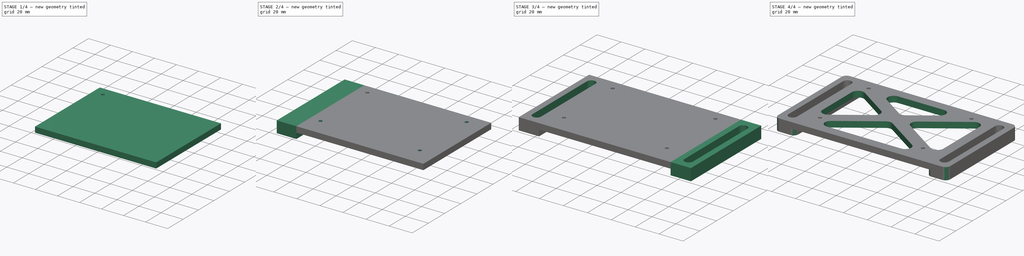
[diagram: build sequence overview — one tinted view per stage of 4, left to right]
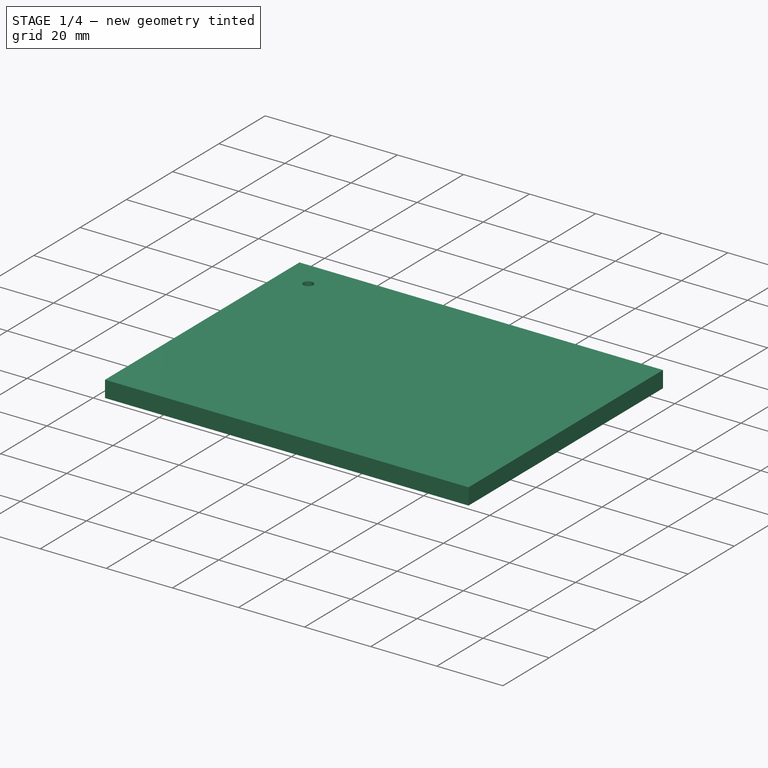
[diagram: stage 1 of 4 — iso view after this stage's code; geometry added in this stage tinted green]
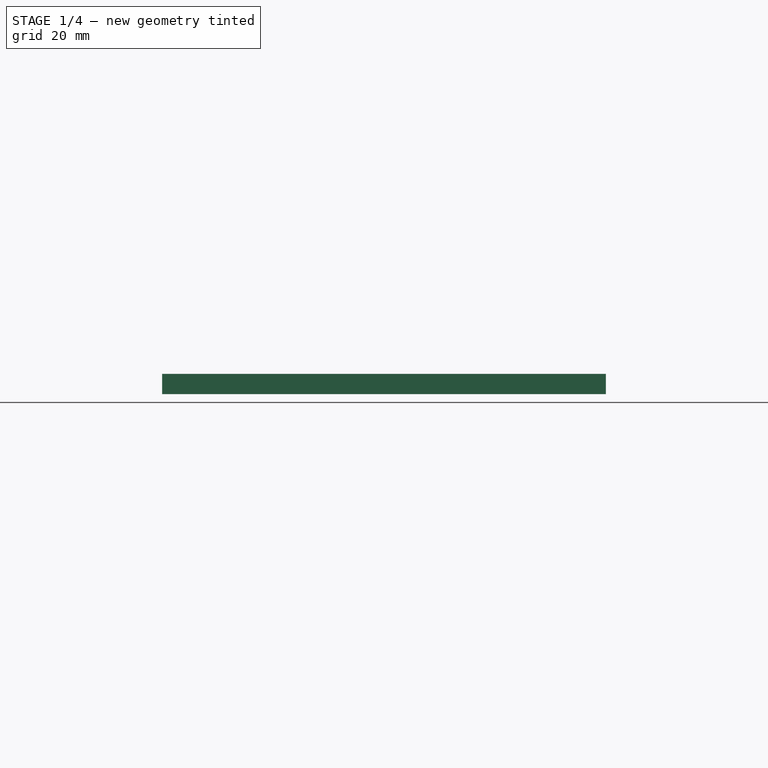
[diagram: stage 1 of 4 — front view after this stage's code; geometry added in this stage tinted green]
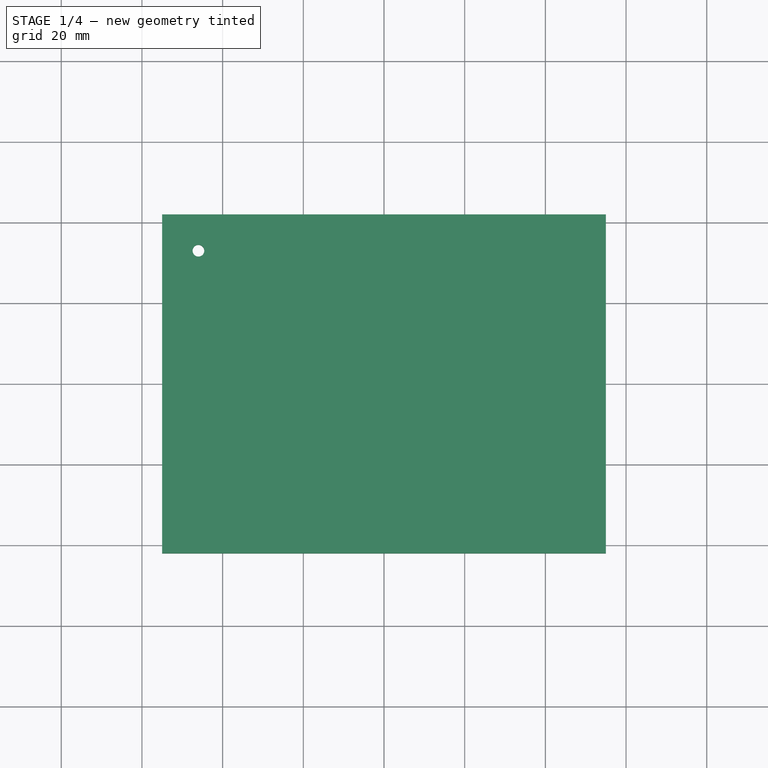
[diagram: stage 1 of 4 — top view after this stage's code; geometry added in this stage tinted green]
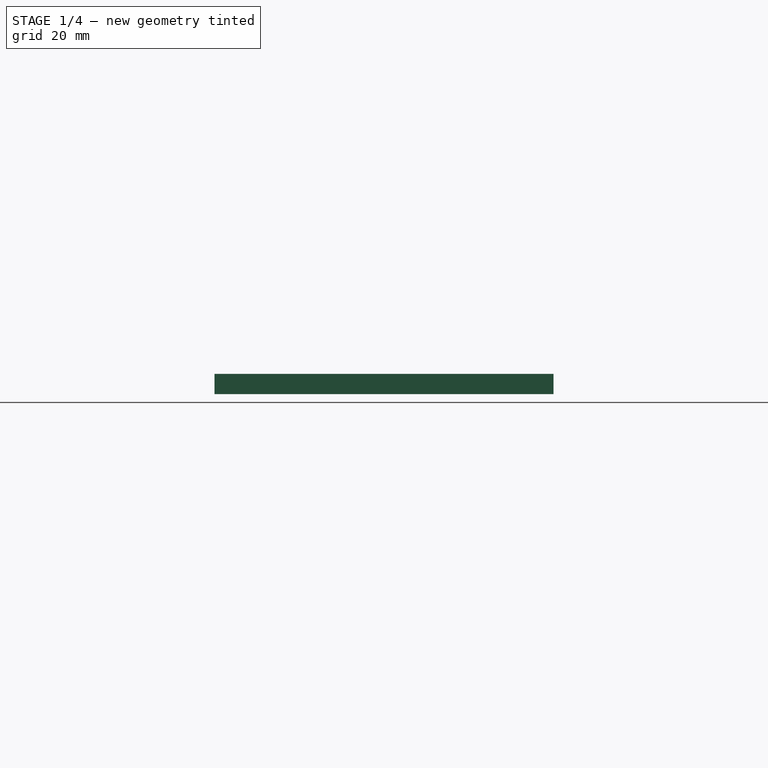
[diagram: stage 1 of 4 — right view after this stage's code; geometry added in this stage tinted green]
FCSTD DOCUMENT  (FreeCAD 0.19R)
Label: Jetson_mount
License: All rights reserved
LicenseURL: http://en.wikipedia.org/wiki/All_rights_reserved
objects: Sketcher::SketchObject×5, PartDesign::Pad×3, PartDesign::Pocket×3, PartDesign::LinearPattern×2, PartDesign::Fillet×2, PartDesign::Hole×1, PartDesign::MultiTransform×1, PartDesign::Mirrored×1, PartDesign::Body×1
note: 28 computed .brp shape members not serialized (recipe doc carries the construction recipe); baked Part::Feature solids carry a one-line shape summary decoded from their .brp

FEATURE [Sketcher::SketchObject] Sketch  label="floor_sketch"
  FullyConstrained = true
  MapMode = 5
  Support = -> [XY_Plane]
  sketch-geometry (4):
    g0: LineSegment StartX=-55 StartY=-42 StartZ=0 EndX=55 EndY=-42 EndZ=0
    g1: LineSegment StartX=55 StartY=-42 StartZ=0 EndX=55 EndY=42 EndZ=0
    g2: LineSegment StartX=55 StartY=42 StartZ=0 EndX=-55 EndY=42 EndZ=0
    g3: LineSegment StartX=-55 StartY=42 StartZ=0 EndX=-55 EndY=-42 EndZ=0
  constraints (11):
    c: Coincident(g0,g1)
    c: Coincident(g1,g2)
    c: Coincident(g2,g3)
    c: Coincident(g3,g0)
    c: Horizontal(g0)
    c: Horizontal(g2)
    c: Vertical(g1)
    c: Vertical(g3)
    c: Symmetric(g1,g0,g-1)
    c: DistanceX(g2,g2) = 110
    c: DistanceY(g3,g3) = 84
FEATURE [PartDesign::Pad] Pad  label="floor"
  Direction = (1,1,1)
  Length = 5
  Length2 = 100
  Profile = -> Sketch
  Type = 0
FEATURE [Sketcher::SketchObject] Sketch001  label="jetson_mount_holes_sketch"
  ExternalGeometry = -> [Pad]
  FullyConstrained = true
  MapMode = 5
  Placement = pos=(0,0,5) rot=(0,0,1;0rad)
  Support = -> [Pad]
  sketch-geometry (2):
    g0: GeomPoint X=-46 Y=33 Z=0
    g1: Circle CenterX=-46 CenterY=33 CenterZ=0 NormalX=0 NormalY=0 NormalZ=1 AngleXU=0 Radius=1.375
  constraints (4):
    c: DistanceX(g-3,g0) = 9
    c: DistanceY(g0,g-3) = 9
    c: Coincident(g1,g0)
    c: Radius(g1) = 1.375
FEATURE [PartDesign::Hole] Hole  label="jetson_mount_holes"
  BaseFeature = -> Pad
  Depth = 25
  DepthType = 1
  Diameter = 2.9
  DrillForDepth = false
  DrillPoint = 1
  DrillPointAngle = 118
  HoleCutCountersinkAngle = 90
  HoleCutCustomValues = false
  HoleCutDepth = 0
  HoleCutDiameter = 6.1
  HoleCutType = 0
  ModelActualThread = false
  Profile = -> Sketch001
  Tapered = false
  TaperedAngle = 90
  ThreadAngle = 0
  ThreadClass = 0
  ThreadCutOffInner = 0
  ThreadCutOffOuter = 0
  ThreadDirection = 0
  ThreadFit = 0
  ThreadPitch = 0
  ThreadSize = 8
  ThreadType = 1
  Threaded = false
FEATURE [Sketcher::SketchObject] Sketch002  label="M2-5_hex_sk"
  ExternalGeometry = -> [Hole]
  FullyConstrained = true
  MapMode = 5
  Placement = pos=(0,0,0) rot=(1,0,0;3.14159rad)
  Support = -> [Hole]
  sketch-geometry (7):
    g0: LineSegment StartX=-46 StartY=-36.0311 StartZ=0 EndX=-43.375 EndY=-34.5155 EndZ=0
    g1: LineSegment StartX=-43.375 StartY=-34.5155 StartZ=0 EndX=-43.375 EndY=-31.4845 EndZ=0
    g2: LineSegment StartX=-43.375 StartY=-31.4845 StartZ=0 EndX=-46 EndY=-29.9689 EndZ=0
    g3: LineSegment StartX=-46 StartY=-29.9689 StartZ=0 EndX=-48.625 EndY=-31.4845 EndZ=0
    g4: LineSegment StartX=-48.625 StartY=-31.4845 StartZ=0 EndX=-48.625 EndY=-34.5155 EndZ=0
    g5: LineSegment StartX=-48.625 StartY=-34.5155 StartZ=0 EndX=-46 EndY=-36.0311 EndZ=0
    g6: Circle CenterX=-46 CenterY=-33 CenterZ=0 NormalX=0 NormalY=0 NormalZ=1 AngleXU=0 Radius=3.03109
  constraints (16):
    c: Coincident(g0,g1)
    c: Coincident(g1,g2)
    c: Coincident(g2,g3)
    c: Coincident(g3,g4)
    c: Coincident(g4,g5)
    c: Coincident(g5,g0)
    c: Equal(g0, g1-g5) x5
    c: PointOnObject(g0,g6)
    c: PointOnObject(g1,g6)
    c: PointOnObject(g2,g6)
    c: PointOnObject(g3,g6)
    c: PointOnObject(g4,g6)
    c: PointOnObject(g5,g6)
    c: Coincident(g6,g-3)
    c: Vertical(g0,g6)
    c: Distance(g3,g1) = 5.25
FEATURE [PartDesign::Pocket] Pocket  label="M2-5_hex"
  BaseFeature = -> Hole
  Length = 1.75
  Length2 = 100
  Profile = -> Sketch002
  Type = 0
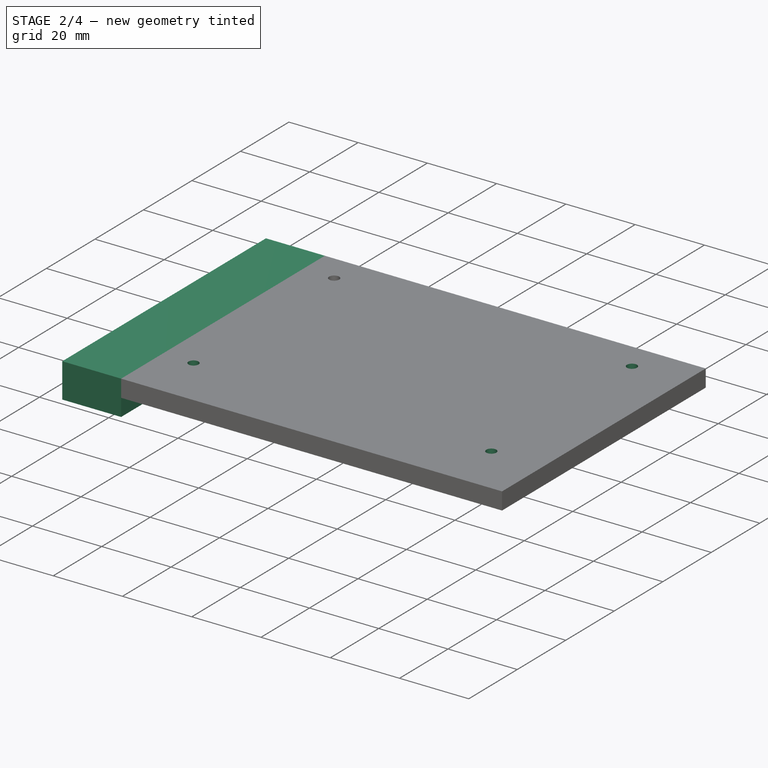
[diagram: stage 2 of 4 — iso view after this stage's code; geometry added in this stage tinted green]
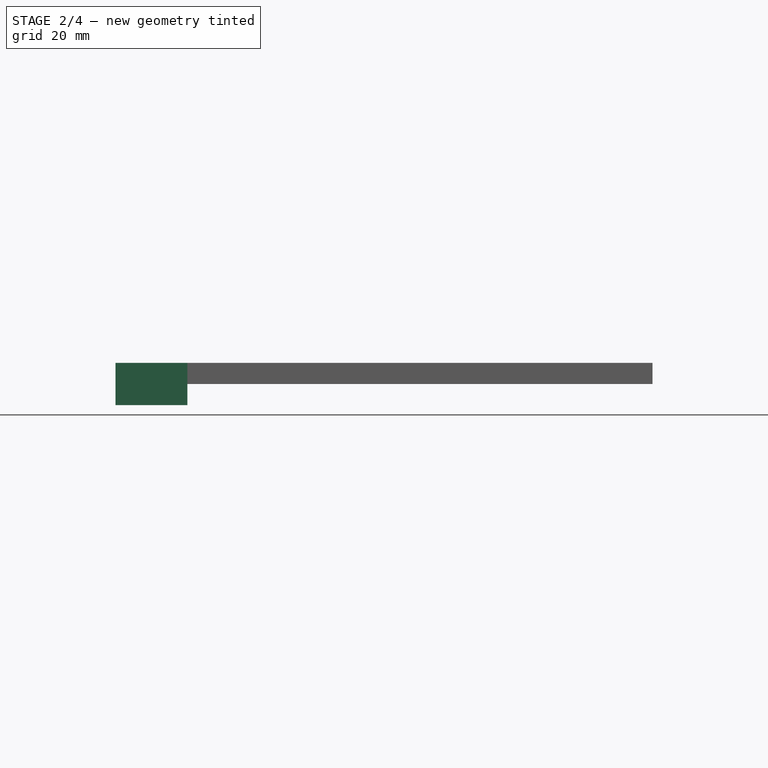
[diagram: stage 2 of 4 — front view after this stage's code; geometry added in this stage tinted green]
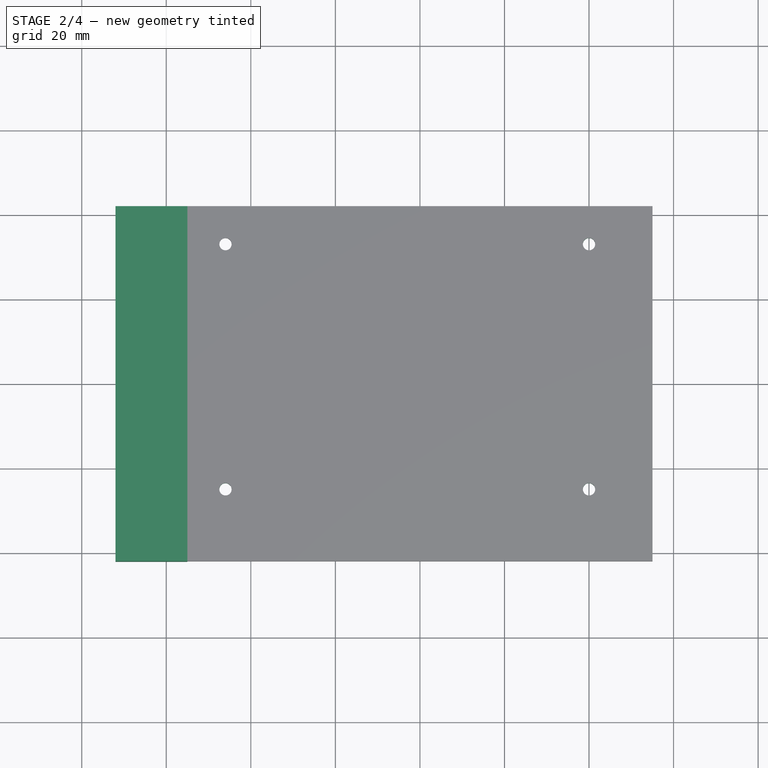
[diagram: stage 2 of 4 — top view after this stage's code; geometry added in this stage tinted green]
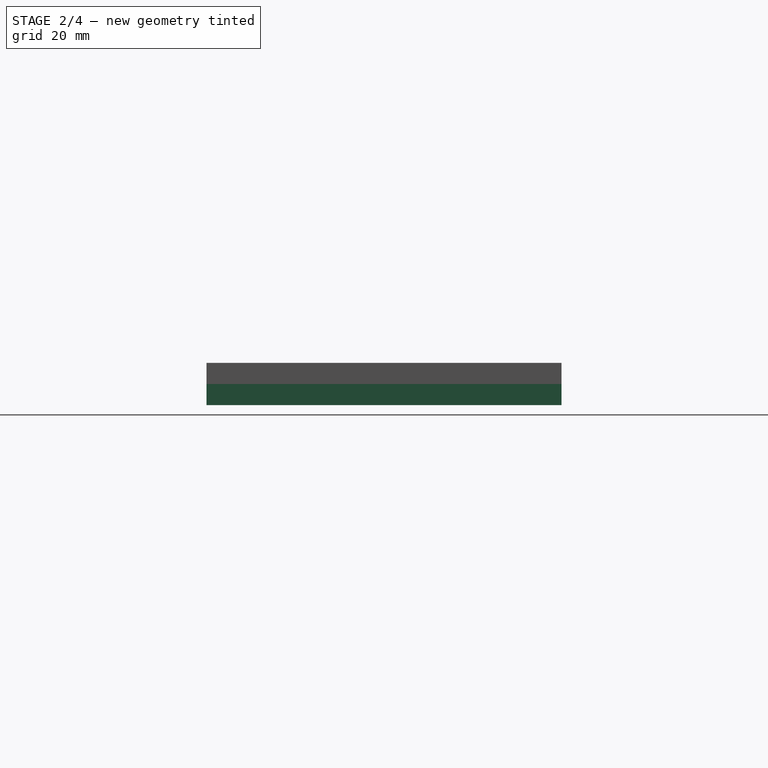
[diagram: stage 2 of 4 — right view after this stage's code; geometry added in this stage tinted green]
FEATURE [PartDesign::LinearPattern] LinearPattern
  Direction = -> X_Axis
  Length = 86
  Occurrences = 2
FEATURE [PartDesign::LinearPattern] LinearPattern001
  Direction = -> Y_Axis
  Length = 58
  Occurrences = 2
  Reversed = true
FEATURE [PartDesign::MultiTransform] MultiTransform  label="quad_M2-5_sys"
  BaseFeature = -> Pocket
  Originals = -> [Hole,Pocket]
  Transformations = -> [LinearPattern,LinearPattern001]
FEATURE [PartDesign::Pad] Pad001  label="side_slot_extender"
  BaseFeature = -> MultiTransform
  Direction = (1,1,1)
  Length = 17
  Length2 = 100
  Profile = -> MultiTransform [Face2]
  Type = 0
FEATURE [PartDesign::Pad] Pad002  label="side_slot_lift"
  BaseFeature = -> Pad001
  Direction = (1,1,1)
  Length = 5
  Length2 = 100
  Profile = -> Pad001 [Face6]
  Type = 0
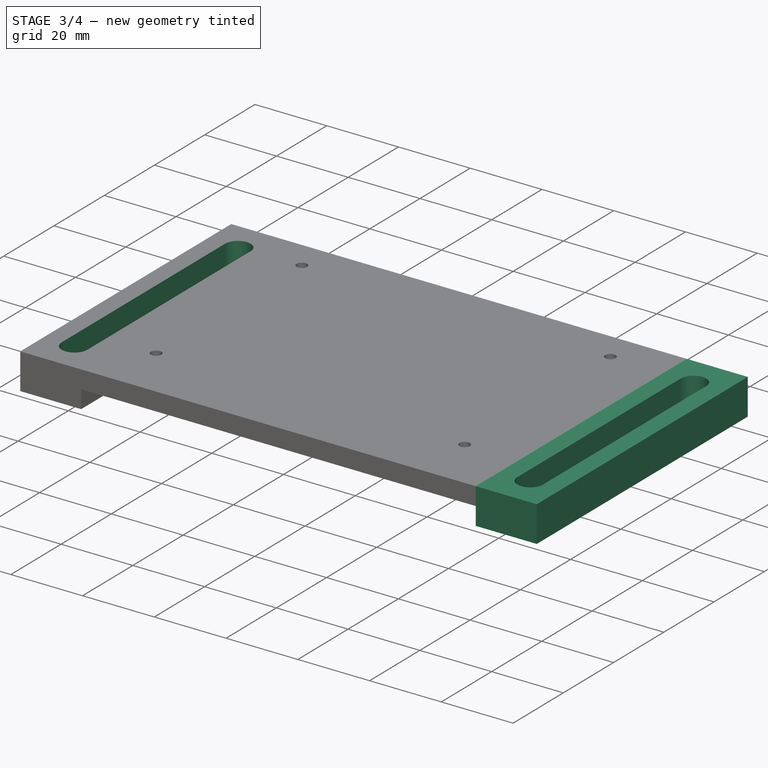
[diagram: stage 3 of 4 — iso view after this stage's code; geometry added in this stage tinted green]
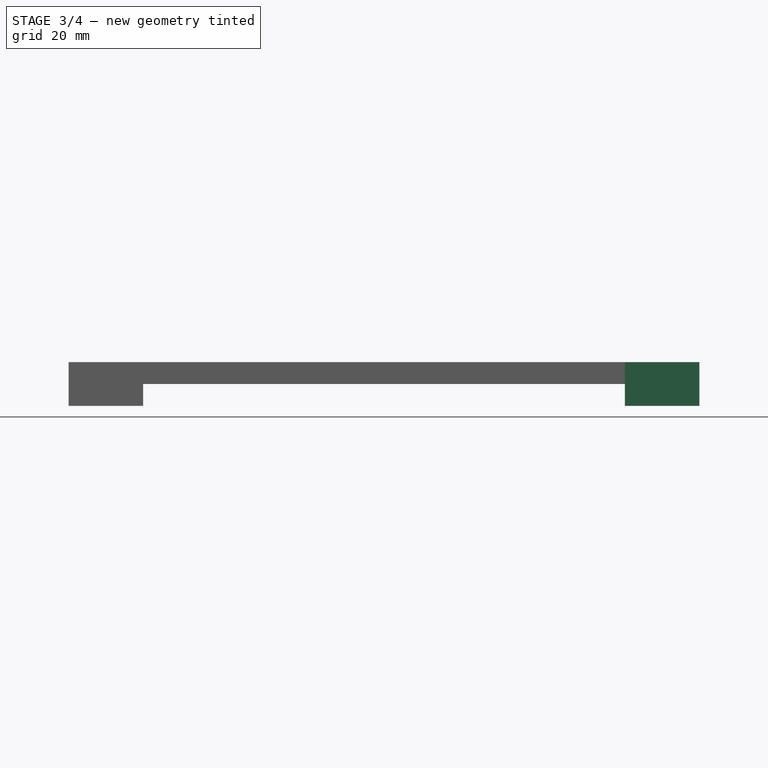
[diagram: stage 3 of 4 — front view after this stage's code; geometry added in this stage tinted green]
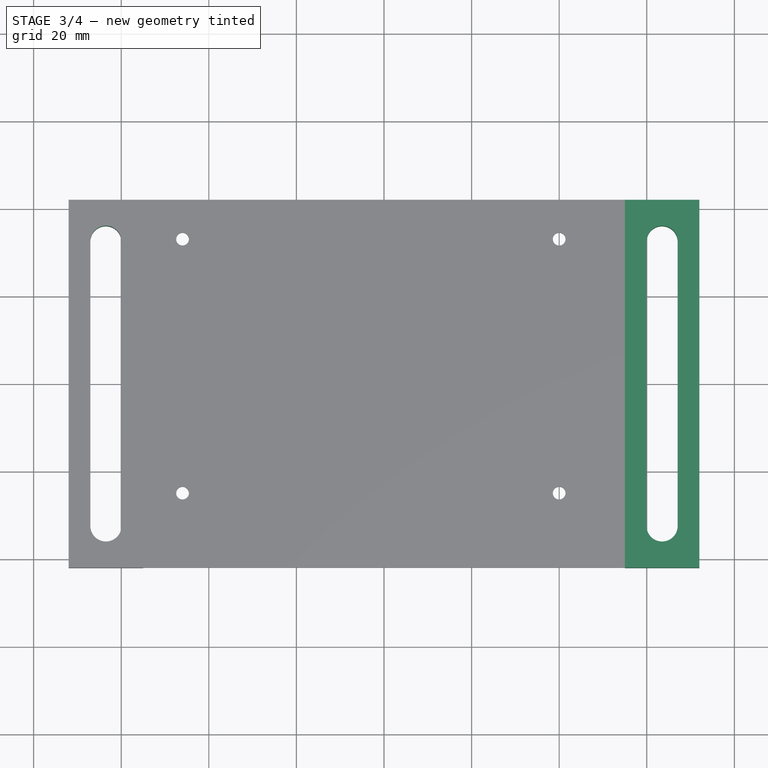
[diagram: stage 3 of 4 — top view after this stage's code; geometry added in this stage tinted green]
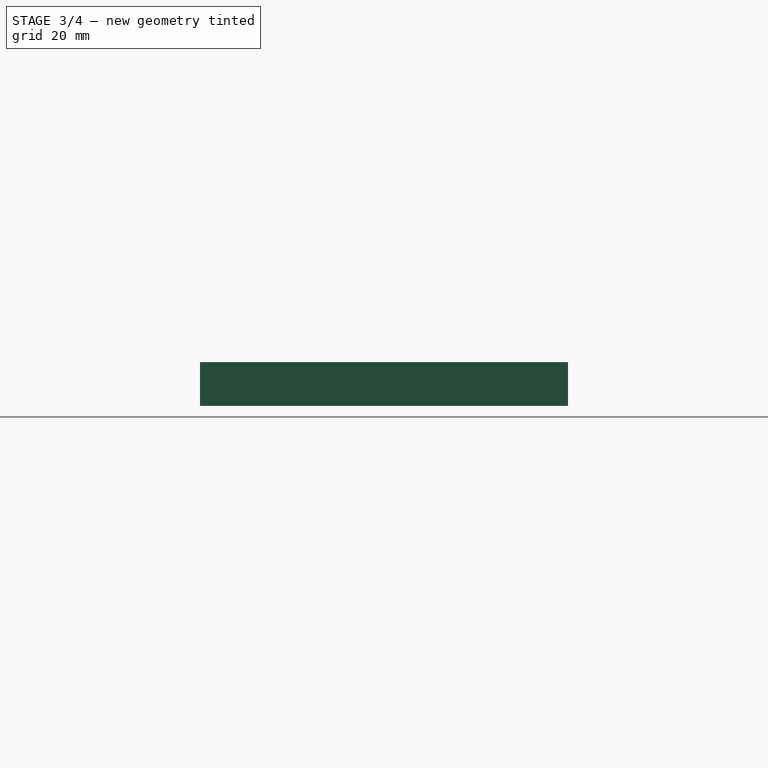
[diagram: stage 3 of 4 — right view after this stage's code; geometry added in this stage tinted green]
FEATURE [Sketcher::SketchObject] Sketch003  label="side_slot_sk"
  FullyConstrained = true
  MapMode = 5
  Placement = pos=(0,0,5) rot=(0,0,1;0rad)
  Support = -> [Pad002]
  sketch-geometry (4):
    g0: ArcOfCircle CenterX=-63.5 CenterY=32.5 CenterZ=0 NormalX=0 NormalY=0 NormalZ=1 AngleXU=0 Radius=3.55 StartAngle=-9e-16 EndAngle=3.14159
    g1: ArcOfCircle CenterX=-63.5 CenterY=-32.5 CenterZ=0 NormalX=0 NormalY=0 NormalZ=1 AngleXU=0 Radius=3.55 StartAngle=3.14159 EndAngle=6.28319
    g2: LineSegment StartX=-67.05 StartY=32.5 StartZ=0 EndX=-67.05 EndY=-32.5 EndZ=0
    g3: LineSegment StartX=-59.95 StartY=32.5 StartZ=0 EndX=-59.95 EndY=-32.5 EndZ=0
  constraints (9):
    c: Tangent(g0,g3) = 1.5708
    c: Tangent(g0,g2) = -1.5708
    c: Tangent(g2,g1) = -1.5708
    c: Tangent(g3,g1) = 1.5708
    c: Equal(g0,g1)
    c: DistanceX(g-2,g0) = -63.5
    c: Radius(g0) = 3.55
    c: Symmetric(g0,g1,g-1)
    c: Distance(g1,g0) = 65
FEATURE [PartDesign::Pocket] Pocket001  label="side_slot"
  BaseFeature = -> Pad002
  Length = 5
  Length2 = 100
  Profile = -> Sketch003
  Type = 1
FEATURE [PartDesign::Mirrored] Mirrored  label="dual_side_slot"
  BaseFeature = -> Pocket001
  MirrorPlane = -> YZ_Plane
  Originals = -> [Pad001,Pad002,Pocket001]
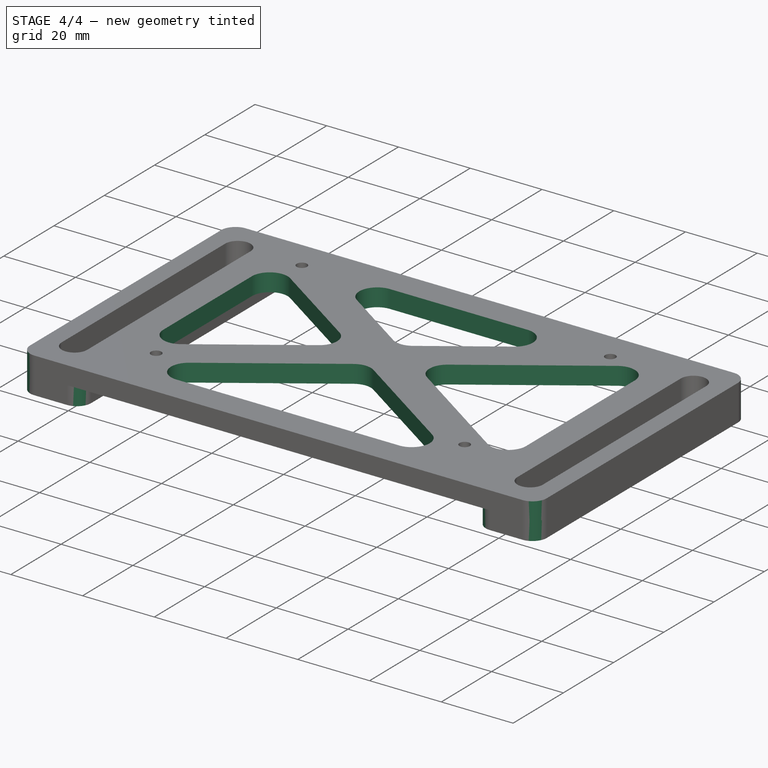
[diagram: stage 4 of 4 — iso view after this stage's code; geometry added in this stage tinted green]
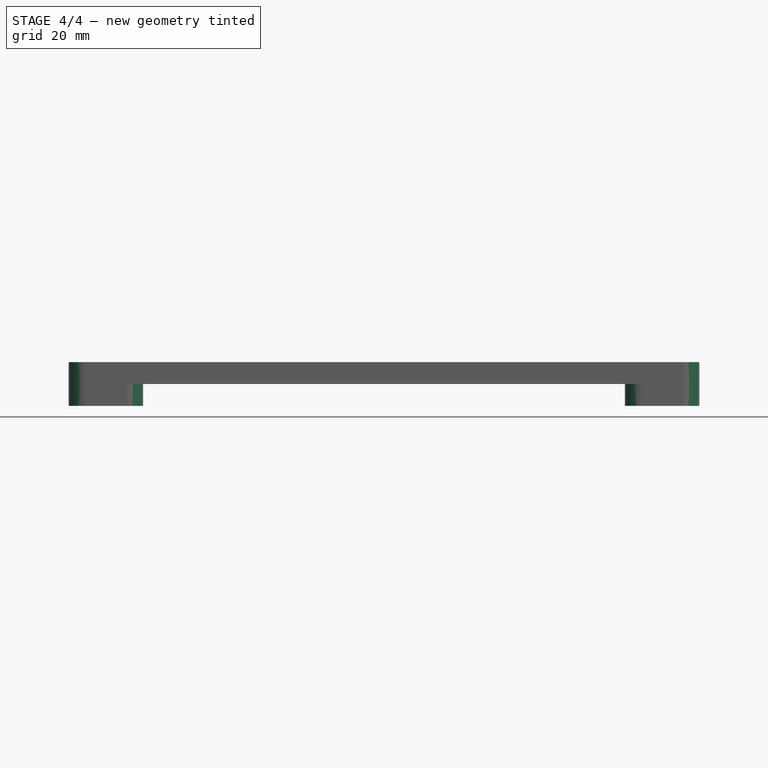
[diagram: stage 4 of 4 — front view after this stage's code; geometry added in this stage tinted green]
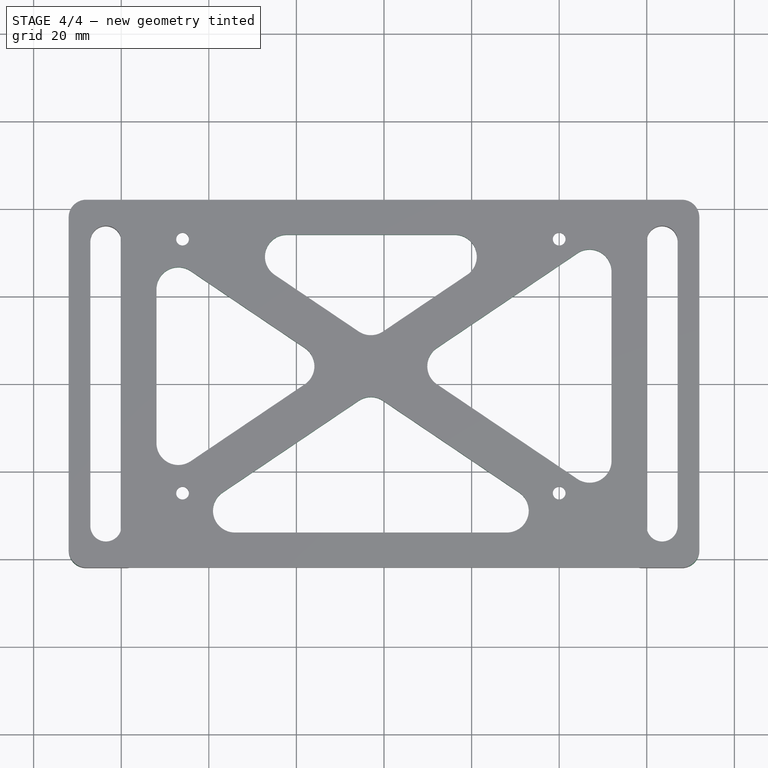
[diagram: stage 4 of 4 — top view after this stage's code; geometry added in this stage tinted green]
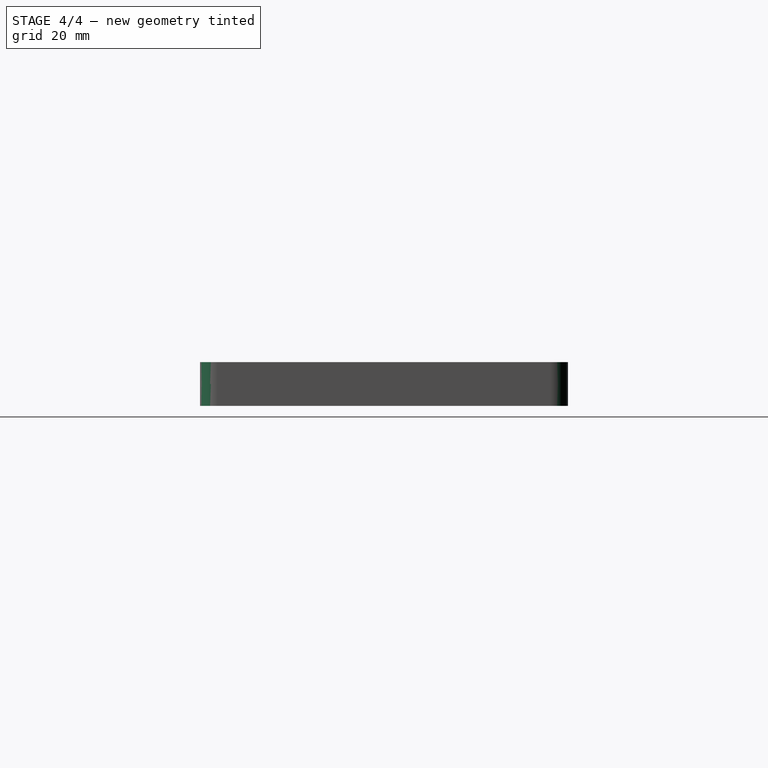
[diagram: stage 4 of 4 — right view after this stage's code; geometry added in this stage tinted green]
FEATURE [Sketcher::SketchObject] Sketch004  label="lighting_hole_sk"
  ExternalGeometry = -> [Mirrored]
  FullyConstrained = true
  MapMode = 5
  Placement = pos=(0,0,5) rot=(0,0,1;0rad)
  Support = -> [Mirrored]
  sketch-geometry (14):
    g0: LineSegment StartX=-46 StartY=33 StartZ=0 EndX=40 EndY=-25 EndZ=0
    g1: LineSegment StartX=-46 StartY=-25 StartZ=0 EndX=40 EndY=33 EndZ=0
    g2: LineSegment StartX=-38.5405 StartY=34 StartZ=0 EndX=32.5405 EndY=34 EndZ=0
    g3: LineSegment StartX=-51.95 StartY=-22.982 StartZ=0 EndX=-51.95 EndY=30.982 EndZ=0
    g4: LineSegment StartX=-50.4026 StartY=-34 StartZ=0 EndX=44.4026 EndY=-34 EndZ=0
    g5: LineSegment StartX=51.95 StartY=35.0285 StartZ=0 EndX=51.95 EndY=-27.0285 EndZ=0
    g6: LineSegment StartX=-38.5405 StartY=34 StartZ=0 EndX=-3 EndY=10.0308 EndZ=0
    g7: LineSegment StartX=32.5405 StartY=34 StartZ=0 EndX=-3 EndY=10.0308 EndZ=0
    g8: LineSegment StartX=-51.95 StartY=30.982 StartZ=0 EndX=-11.9423 EndY=4 EndZ=0
    g9: LineSegment StartX=-50.4026 StartY=-34 StartZ=0 EndX=-3 EndY=-2.03084 EndZ=0
    g10: LineSegment StartX=5.94228 StartY=4 StartZ=0 EndX=51.95 EndY=35.0285 EndZ=0
    g11: LineSegment StartX=-3 StartY=-2.03084 StartZ=0 EndX=44.4026 EndY=-34 EndZ=0
    g12: LineSegment StartX=-11.9423 StartY=4 StartZ=0 EndX=-51.95 EndY=-22.982 EndZ=0
    g13: LineSegment StartX=5.94228 StartY=4 StartZ=0 EndX=51.95 EndY=-27.0285 EndZ=0
  constraints (37):
    c: Coincident(g0,g-3)
    c: Coincident(g0,g-6)
    c: Coincident(g1,g-4)
    c: Coincident(g1,g-5)
    c: Horizontal(g2)
    c: Vertical(g3)
    c: Horizontal(g4)
    c: Vertical(g5)
    c: Coincident(g6,g2)
    c: Coincident(g13,g5)
    c: Coincident(g7,g2)
    c: Coincident(g12,g3)
    c: Coincident(g8,g3)
    c: Coincident(g11,g4)
    c: Coincident(g9,g4)
    c: Coincident(g10,g5)
    c: Parallel(g1,g7)
    c: Parallel(g7,g9)
    c: Parallel(g0,g6)
    c: Parallel(g6,g8)
    c: Distance(g1,g9) = 5
    c: Distance(g2,g1) = 5
    c: Distance(g2,g0) = 5
    c: Distance(g0,g8) = 5
    c: Distance(g-9,g3) = 8
    c: Distance(g-7,g2) = 8
    c: Distance(g-10,g5) = 8
    c: Distance(g-8,g4) = 8
    c: PointOnObject(g10,g6)
    c: Tangent(g9,g10)
    c: Coincident(g11,g9)
    c: Tangent(g8,g11)
    c: Coincident(g12,g8)
    c: Tangent(g7,g12)
    c: Coincident(g6,g7)
    c: Tangent(g6,g13)
    c: PointOnObject(g13,g10)
FEATURE [PartDesign::Pocket] Pocket002  label="lighting_hole"
  BaseFeature = -> Mirrored
  Length = 5
  Length2 = 100
  Profile = -> Sketch004
  Type = 1
FEATURE [PartDesign::Fillet] Fillet  label="lighting_hole_fillet"
  Base = -> Pocket002 [Edge126,Edge124,Edge125,Edge109,Edge110,Edge111,Edge143,Edge144,Edge142,Edge140,Edge139,Edge141]
  BaseFeature = -> Pocket002
  Radius = 5
  SupportTransform = false
FEATURE [PartDesign::Fillet] Fillet001  label="floor_corner_fillet"
  Base = -> Fillet [Edge196,Edge173,Edge176,Edge169,Edge194,Edge183,Edge172,Edge186,Edge71,Edge72,Edge68,Edge69]
  BaseFeature = -> Fillet
  Radius = 4
  SupportTransform = false
FEATURE [PartDesign::Body] Body  label="body"
  Group = -> [Sketch,Pad,Sketch001,Hole,Sketch002,Pocket,MultiTransform,LinearPattern,LinearPattern001,Pad001,Pad002,Sketch003,Pocket001,Mirrored,Sketch004,Pocket002,Fillet,Fillet001]
  Origin = -> Origin
  Tip = -> Fillet001
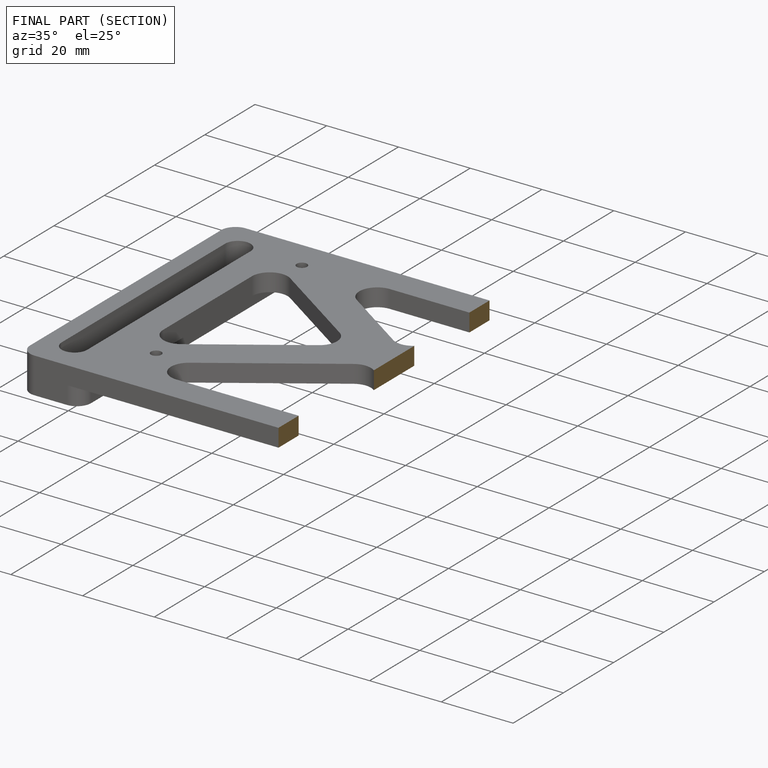
[diagram: finished part — half-section view (interior)]
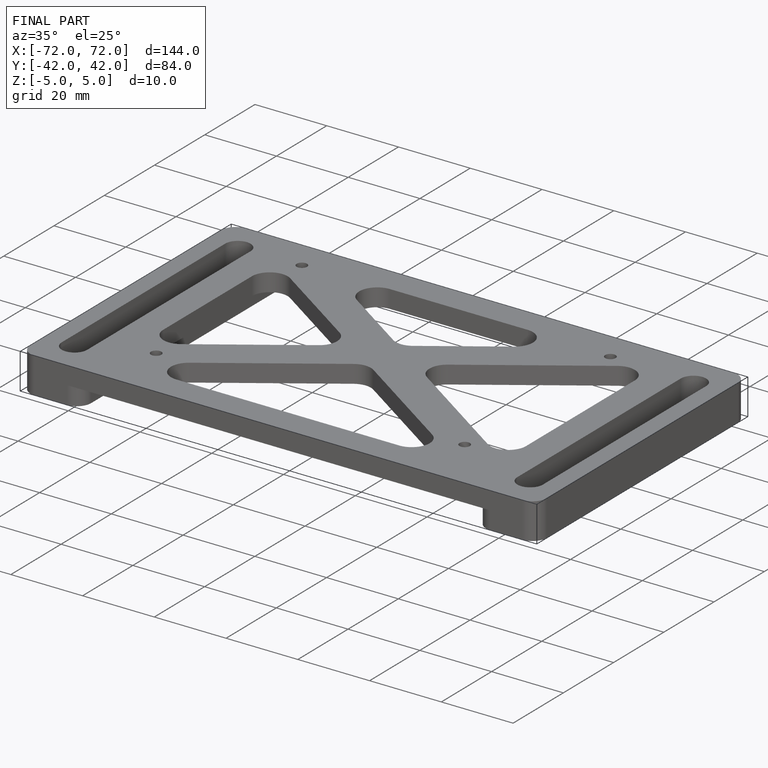
[diagram: finished part — iso view with bounding-box wireframe]
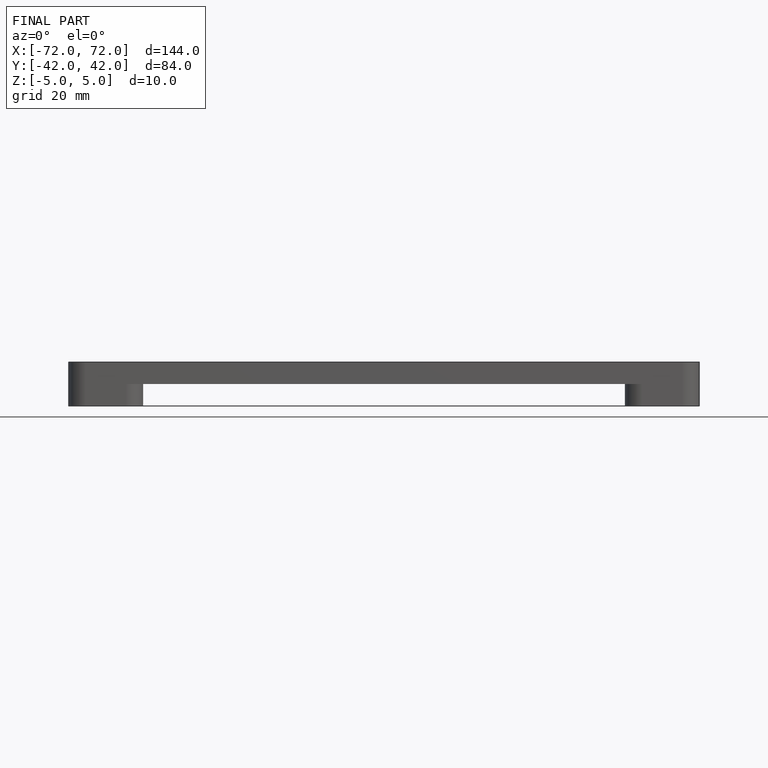
[diagram: finished part — front view with bounding-box wireframe]
